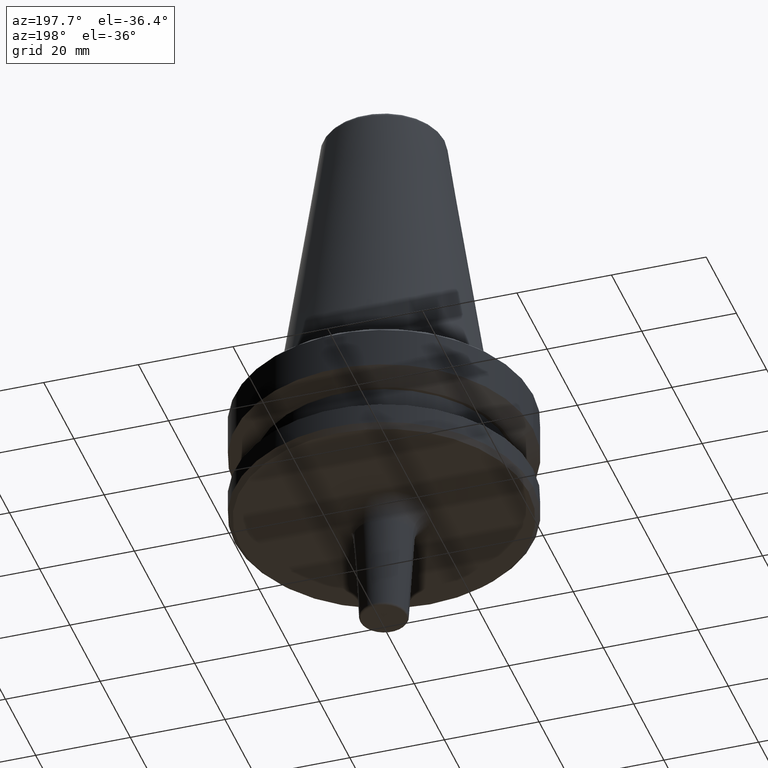
[diagram: clean part render]
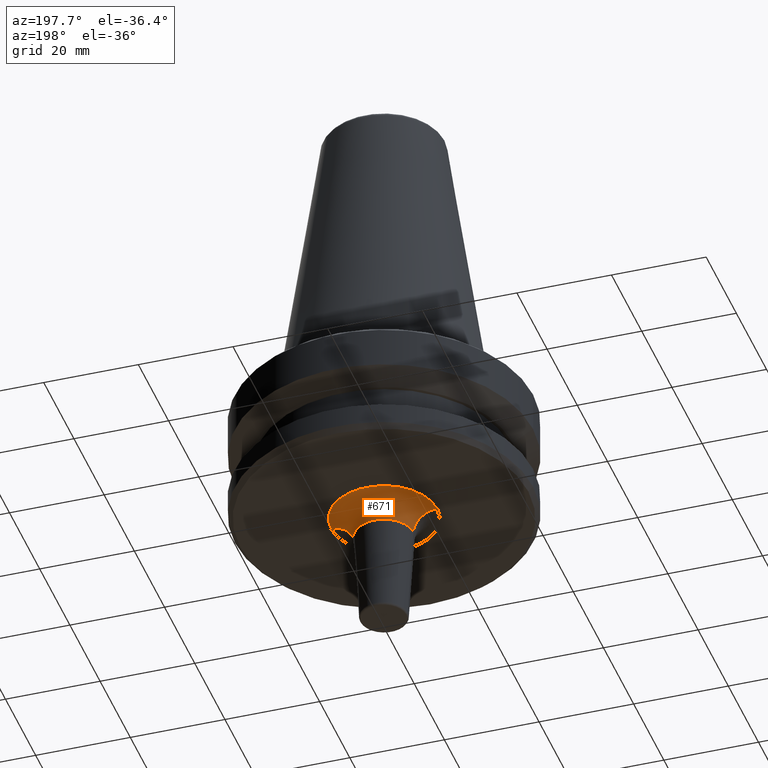
[diagram: same view with one face highlighted and labeled with its STEP entity id]
A machine part, auxiliary view. The second image highlights one B-rep face of the part: STEP entity #671.
In plain terms, the highlighted toroidal blend (fillet) surface has major radius 11.209 mm and minor (blend) radius 5 mm.
Its self-contained STEP definition (entity closure, byte-faithful):
#37 = EDGE_CURVE ( 'NONE', #79, #450, #677, .T. ) ;
#38 = CARTESIAN_POINT ( 'NONE',  ( 0.0000000000000000000, 0.0000000000000000000, -92.40000000000804900 ) ) ;
#44 = EDGE_CURVE ( 'NONE', #79, #484, #556, .T. ) ;
#53 = CARTESIAN_POINT ( 'NONE',  ( -6.217967687218386900, 1.067093514758627600E-015, -97.10053854636829800 ) ) ;
#68 = EDGE_CURVE ( 'NONE', #484, #647, #948, .T. ) ;
#79 = VERTEX_POINT ( 'NONE', #643 ) ;
#127 = DIRECTION ( 'NONE',  ( -0.0000000000000000000, -0.0000000000000000000, 1.000000000000000000 ) ) ;
#138 = ORIENTED_EDGE ( 'NONE', *, *, #547, .T. ) ;
#146 = DIRECTION ( 'NONE',  ( 1.000000000000000000, 0.0000000000000000000, 0.0000000000000000000 ) ) ;
#165 = AXIS2_PLACEMENT_3D ( 'NONE', #221, #645, #146 ) ;
#186 = TOROIDAL_SURFACE ( 'NONE', #165, 11.20899191454727800, 4.999999999999995600 ) ;
#221 = CARTESIAN_POINT ( 'NONE',  ( 0.0000000000000000000, 0.0000000000000000000, -97.40000000000803500 ) ) ;
#233 = AXIS2_PLACEMENT_3D ( 'NONE', #628, #127, #705 ) ;
#281 = ORIENTED_EDGE ( 'NONE', *, *, #37, .T. ) ;
#317 = DIRECTION ( 'NONE',  ( 1.000000000000000000, 0.0000000000000000000, 0.0000000000000000000 ) ) ;
#345 = CARTESIAN_POINT ( 'NONE',  ( 6.217967687218386900, 0.0000000000000000000, -97.10053854636829800 ) ) ;
#409 = DIRECTION ( 'NONE',  ( 1.224646799147353200E-016, 1.000000000000000000, 0.0000000000000000000 ) ) ;
#450 = VERTEX_POINT ( 'NONE', #345 ) ;
#453 = CARTESIAN_POINT ( 'NONE',  ( -11.20899191454727800, 1.372705606981888800E-015, -92.40000000000804900 ) ) ;
#484 = VERTEX_POINT ( 'NONE', #453 ) ;
#494 = CARTESIAN_POINT ( 'NONE',  ( 11.20899191454727800, 0.0000000000000000000, -97.40000000000803500 ) ) ;
#537 = AXIS2_PLACEMENT_3D ( 'NONE', #38, #809, #317 ) ;
#547 = EDGE_CURVE ( 'NONE', #450, #647, #978, .T. ) ;
#556 = CIRCLE ( 'NONE', #537, 11.20899191454727800 ) ;
#569 = ORIENTED_EDGE ( 'NONE', *, *, #68, .F. ) ;
#590 = DIRECTION ( 'NONE',  ( 0.0000000000000000000, 0.0000000000000000000, -1.000000000000000000 ) ) ;
#628 = CARTESIAN_POINT ( 'NONE',  ( 0.0000000000000000000, 0.0000000000000000000, -97.10053854636829800 ) ) ;
#634 = AXIS2_PLACEMENT_3D ( 'NONE', #876, #409, #960 ) ;
#643 = CARTESIAN_POINT ( 'NONE',  ( 11.20899191454727800, 0.0000000000000000000, -92.40000000000804900 ) ) ;
#645 = DIRECTION ( 'NONE',  ( -0.0000000000000000000, -0.0000000000000000000, 1.000000000000000000 ) ) ;
#647 = VERTEX_POINT ( 'NONE', #53 ) ;
#671 = ADVANCED_FACE ( 'NONE', ( #1025 ), #186, .F. ) ;
#677 = CIRCLE ( 'NONE', #742, 4.999999999999990200 ) ;
#705 = DIRECTION ( 'NONE',  ( 1.000000000000000000, 0.0000000000000000000, 0.0000000000000000000 ) ) ;
#722 = EDGE_LOOP ( 'NONE', ( #569, #913, #281, #138 ) ) ;
#742 = AXIS2_PLACEMENT_3D ( 'NONE', #494, #1052, #590 ) ;
#809 = DIRECTION ( 'NONE',  ( -0.0000000000000000000, -0.0000000000000000000, 1.000000000000000000 ) ) ;
#876 = CARTESIAN_POINT ( 'NONE',  ( -11.20899191454727800, 1.372705606981888600E-015, -97.40000000000803500 ) ) ;
#913 = ORIENTED_EDGE ( 'NONE', *, *, #44, .F. ) ;
#948 = CIRCLE ( 'NONE', #634, 4.999999999999995600 ) ;
#960 = DIRECTION ( 'NONE',  ( -1.000000000000000000, 1.224646799147353200E-016, 0.0000000000000000000 ) ) ;
#978 = CIRCLE ( 'NONE', #233, 6.217967687218386900 ) ;
#1025 = FACE_OUTER_BOUND ( 'NONE', #722, .T. ) ;
#1052 = DIRECTION ( 'NONE',  ( 0.0000000000000000000, -1.000000000000000000, 0.0000000000000000000 ) ) ;